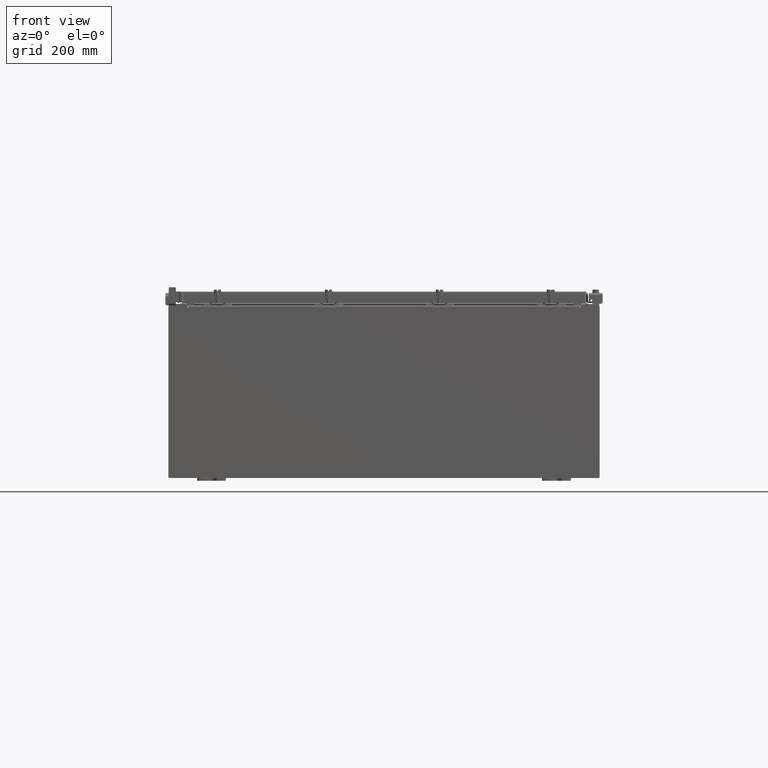
[diagram: clean part render]
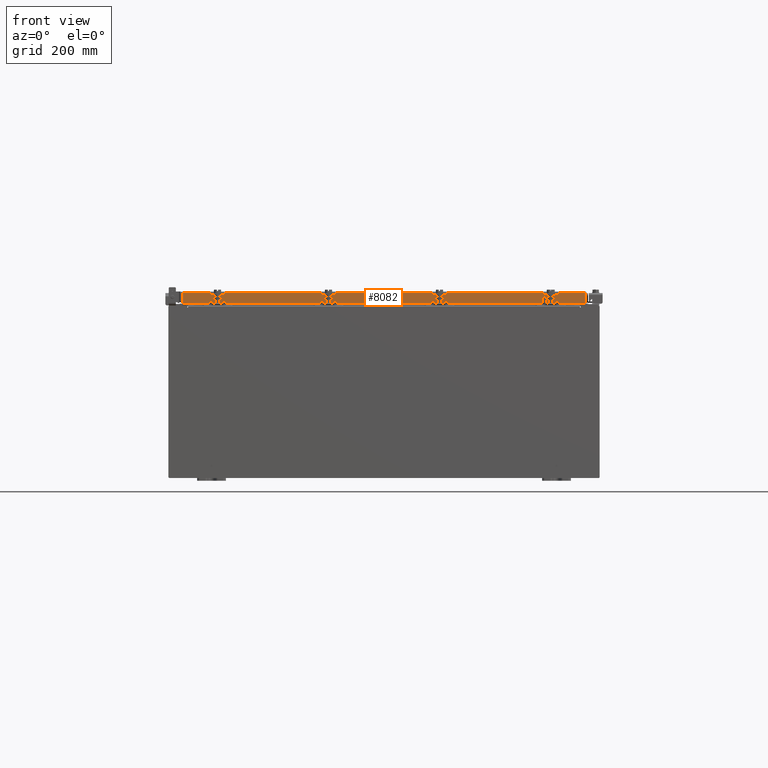
[diagram: same view with one face highlighted and labeled with its STEP entity id]
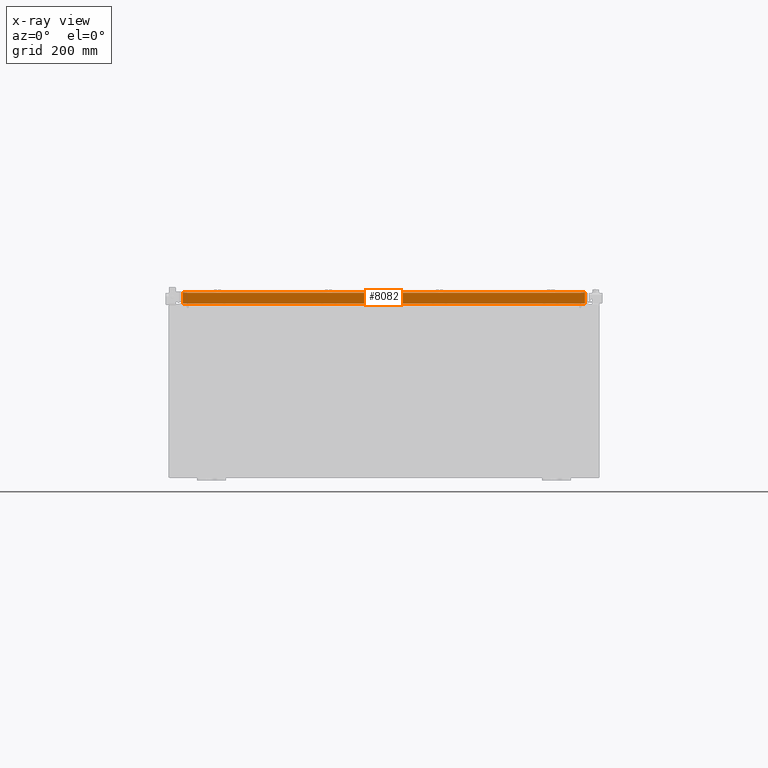
[diagram: x-ray of the same camera — body ghosted, the highlighted face saturated]
A machine part, front view. The second image highlights one B-rep face of the part: STEP entity #8082.
The next image is the same camera in x-ray: the body ghosted, the highlighted face saturated — about 0% of this face is hidden behind the body in this view.
In plain terms, the highlighted planar face has unit normal (-0, 1, -0).
Its self-contained STEP definition (entity closure, byte-faithful):
#85 = VERTEX_POINT ( 'NONE', #2322 ) ;
#1112 = VERTEX_POINT ( 'NONE', #6455 ) ;
#1337 = DIRECTION ( 'NONE',  ( 0.0000000000000000000, -2.818880942772360100E-015, -1.000000000000000000 ) ) ;
#1394 = DIRECTION ( 'NONE',  ( 1.000000000000000000, 3.418789178101959700E-031, -9.318824769679573900E-046 ) ) ;
#1707 = CARTESIAN_POINT ( 'NONE',  ( 13.98915786437626700, -17.09400000000000100, -0.07469999999999978000 ) ) ;
#2322 = CARTESIAN_POINT ( 'NONE',  ( -13.98915786437626900, -17.09400000000000500, -0.8499999999999963100 ) ) ;
#2470 = EDGE_LOOP ( 'NONE', ( #14305, #5535, #24123, #23063, #2995, #17498 ) ) ;
#2995 = ORIENTED_EDGE ( 'NONE', *, *, #17564, .F. ) ;
#3234 = VECTOR ( 'NONE', #1337, 39.37007874015748100 ) ;
#4218 = DIRECTION ( 'NONE',  ( -1.000000000000000000, 0.0000000000000000000, 0.0000000000000000000 ) ) ;
#4932 = EDGE_CURVE ( 'NONE', #18161, #85, #12774, .T. ) ;
#5306 = EDGE_CURVE ( 'NONE', #24372, #20834, #13944, .T. ) ;
#5535 = ORIENTED_EDGE ( 'NONE', *, *, #4932, .T. ) ;
#6455 = CARTESIAN_POINT ( 'NONE',  ( 13.98915786437626500, -17.09400000000000100, -0.08770000000000007000 ) ) ;
#6824 = DIRECTION ( 'NONE',  ( -1.000000000000000000, 4.379057701015054300E-047, 1.212817869044015600E-016 ) ) ;
#7708 = VECTOR ( 'NONE', #15021, 39.37007874015748100 ) ;
#7742 = FACE_OUTER_BOUND ( 'NONE', #2470, .T. ) ;
#7986 = VECTOR ( 'NONE', #1394, 39.37007874015748100 ) ;
#8082 = ADVANCED_FACE ( 'NONE', ( #7742 ), #19955, .F. ) ;
#8576 = DIRECTION ( 'NONE',  ( -3.418789178101958800E-031, 1.000000000000000000, -2.818880942772360100E-015 ) ) ;
#8849 = CARTESIAN_POINT ( 'NONE',  ( -13.23915786437626900, -17.09399999999999800, -0.8500000000000006400 ) ) ;
#9367 = EDGE_CURVE ( 'NONE', #18161, #1112, #23140, .T. ) ;
#10073 = CARTESIAN_POINT ( 'NONE',  ( 5.844078221047488800E-030, -17.09400000000000100, 4.844676449176230700E-014 ) ) ;
#10933 = VERTEX_POINT ( 'NONE', #19079 ) ;
#12774 = LINE ( 'NONE', #14639, #3234 ) ;
#12999 = EDGE_CURVE ( 'NONE', #20834, #85, #17740, .T. ) ;
#13373 = LINE ( 'NONE', #23900, #22842 ) ;
#13944 = LINE ( 'NONE', #19431, #18409 ) ;
#14305 = ORIENTED_EDGE ( 'NONE', *, *, #9367, .F. ) ;
#14639 = CARTESIAN_POINT ( 'NONE',  ( -13.98915786437626900, -17.09400000000000100, 4.844676449176230700E-014 ) ) ;
#15021 = DIRECTION ( 'NONE',  ( -0.0000000000000000000, -2.818880942772360100E-015, -1.000000000000000000 ) ) ;
#16458 = CARTESIAN_POINT ( 'NONE',  ( 14.07799999999999900, -17.09400000000000500, -0.8499999999999996400 ) ) ;
#17089 = EDGE_CURVE ( 'NONE', #1112, #10933, #18447, .T. ) ;
#17498 = ORIENTED_EDGE ( 'NONE', *, *, #17089, .F. ) ;
#17564 = EDGE_CURVE ( 'NONE', #10933, #24372, #13373, .T. ) ;
#17740 = LINE ( 'NONE', #16458, #22145 ) ;
#18161 = VERTEX_POINT ( 'NONE', #21728 ) ;
#18409 = VECTOR ( 'NONE', #4218, 39.37007874015748100 ) ;
#18443 = CARTESIAN_POINT ( 'NONE',  ( 14.07799999999999800, -17.09400000000000100, -0.08770000000000007000 ) ) ;
#18447 = LINE ( 'NONE', #1707, #7708 ) ;
#19079 = CARTESIAN_POINT ( 'NONE',  ( 13.98915786437626700, -17.09400000000000500, -0.8499999999999996400 ) ) ;
#19431 = CARTESIAN_POINT ( 'NONE',  ( 13.23915786437626900, -17.09399999999999800, -0.8500000000000006400 ) ) ;
#19955 = PLANE ( 'NONE',  #22604 ) ;
#20219 = DIRECTION ( 'NONE',  ( -1.000000000000000000, 4.379057701015054300E-047, 1.212817869044015600E-016 ) ) ;
#20834 = VERTEX_POINT ( 'NONE', #8849 ) ;
#21728 = CARTESIAN_POINT ( 'NONE',  ( -13.98915786437626900, -17.09400000000000100, -0.08770000000000007000 ) ) ;
#21858 = DIRECTION ( 'NONE',  ( 0.0000000000000000000, 2.818880942772360100E-015, 1.000000000000000000 ) ) ;
#22145 = VECTOR ( 'NONE', #20219, 39.37007874015748100 ) ;
#22604 = AXIS2_PLACEMENT_3D ( 'NONE', #10073, #8576, #21858 ) ;
#22842 = VECTOR ( 'NONE', #6824, 39.37007874015748100 ) ;
#23063 = ORIENTED_EDGE ( 'NONE', *, *, #5306, .F. ) ;
#23140 = LINE ( 'NONE', #18443, #7986 ) ;
#23900 = CARTESIAN_POINT ( 'NONE',  ( 14.07799999999999900, -17.09400000000000500, -0.8499999999999996400 ) ) ;
#24032 = CARTESIAN_POINT ( 'NONE',  ( 13.23915786437626900, -17.09399999999999800, -0.8500000000000006400 ) ) ;
#24123 = ORIENTED_EDGE ( 'NONE', *, *, #12999, .F. ) ;
#24372 = VERTEX_POINT ( 'NONE', #24032 ) ;